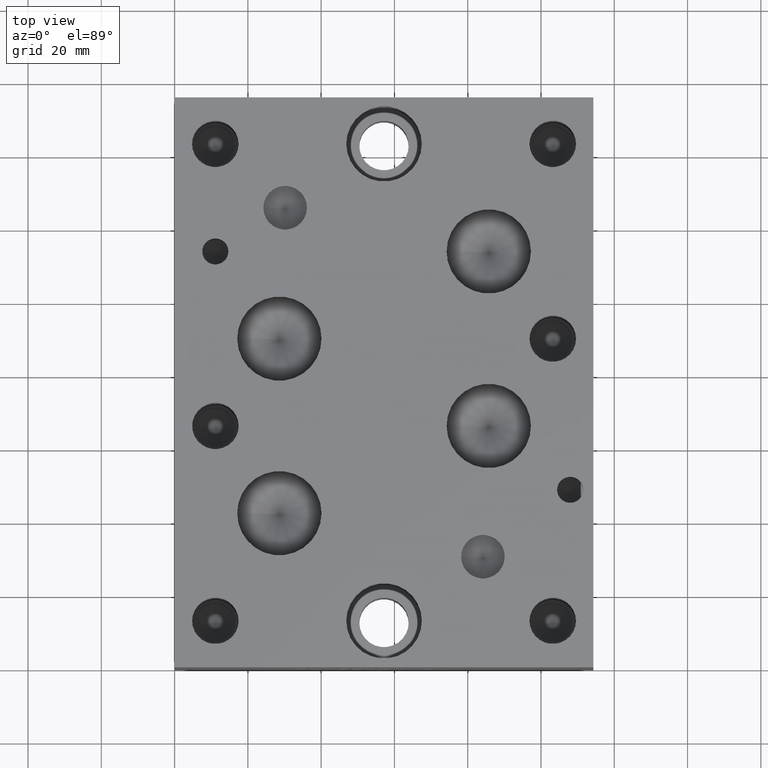
[diagram: clean part render]
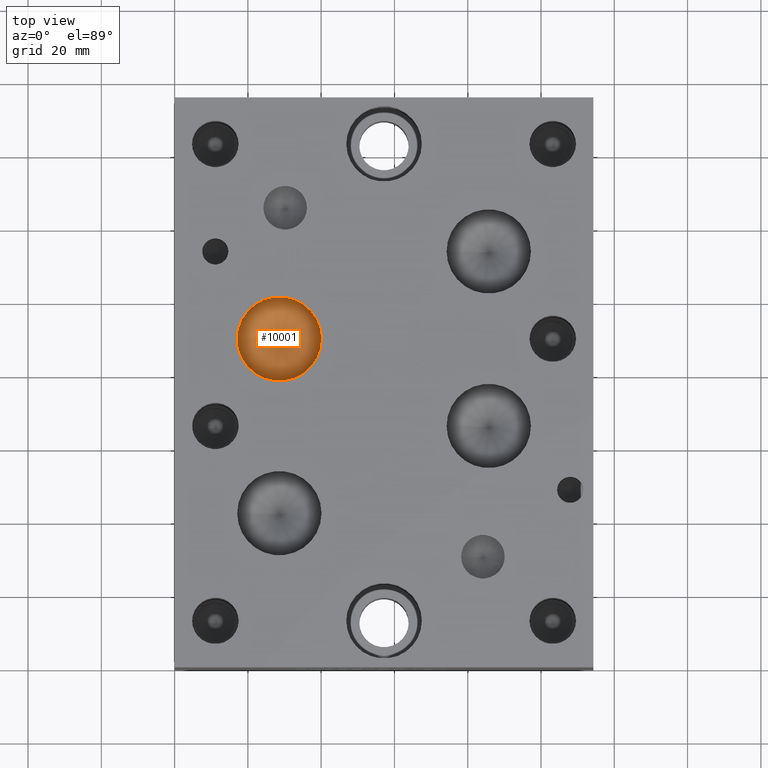
[diagram: same view with one face highlighted and labeled with its STEP entity id]
A machine part, top view. The second image highlights one B-rep face of the part: STEP entity #10001.
In plain terms, the highlighted conical surface has half-angle 60 deg.
Its self-contained STEP definition (entity closure, byte-faithful):
#59=CONICAL_SURFACE('',#10441,5.7531,1.0471975511966);
#136=CIRCLE('',#10442,11.5062);
#137=CIRCLE('',#10443,11.5062);
#1052=FACE_OUTER_BOUND('',#1618,.T.);
#1618=EDGE_LOOP('',(#8741,#8742,#8743,#8744));
#2600=LINE('',#17066,#3548);
#3548=VECTOR('',#12239,5.7531);
#4751=VERTEX_POINT('',#17062);
#4752=VERTEX_POINT('',#17063);
#4753=VERTEX_POINT('',#17065);
#6110=EDGE_CURVE('',#4751,#4752,#136,.T.);
#6111=EDGE_CURVE('',#4752,#4753,#2600,.T.);
#6112=EDGE_CURVE('',#4752,#4751,#137,.T.);
#8741=ORIENTED_EDGE('',*,*,#6110,.T.);
#8742=ORIENTED_EDGE('',*,*,#6111,.T.);
#8743=ORIENTED_EDGE('',*,*,#6111,.F.);
#8744=ORIENTED_EDGE('',*,*,#6112,.T.);
#10001=ADVANCED_FACE('',(#1052),#59,.F.);
#10441=AXIS2_PLACEMENT_3D('',#17061,#12235,#12236);
#10442=AXIS2_PLACEMENT_3D('',#17064,#12237,#12238);
#10443=AXIS2_PLACEMENT_3D('',#17067,#12240,#12241);
#12235=DIRECTION('center_axis',(0.,0.,1.));
#12236=DIRECTION('ref_axis',(1.,0.,0.));
#12237=DIRECTION('center_axis',(0.,0.,1.));
#12238=DIRECTION('ref_axis',(1.,0.,0.));
#12239=DIRECTION('',(0.866025403784439,1.06057523872491E-16,-0.5));
#12240=DIRECTION('center_axis',(0.,0.,1.));
#12241=DIRECTION('ref_axis',(1.,0.,0.));
#17061=CARTESIAN_POINT('Origin',(28.575,89.7128,40.8353361663252));
#17062=CARTESIAN_POINT('',(40.0812,89.7128,44.15689));
#17063=CARTESIAN_POINT('',(17.0688,89.7128,44.15689));
#17064=CARTESIAN_POINT('Origin',(28.575,89.7128,44.15689));
#17065=CARTESIAN_POINT('',(28.575,89.7128,37.5137823326503));
#17066=CARTESIAN_POINT('',(22.8219,89.7128,40.8353361663252));
#17067=CARTESIAN_POINT('Origin',(28.575,89.7128,44.15689));